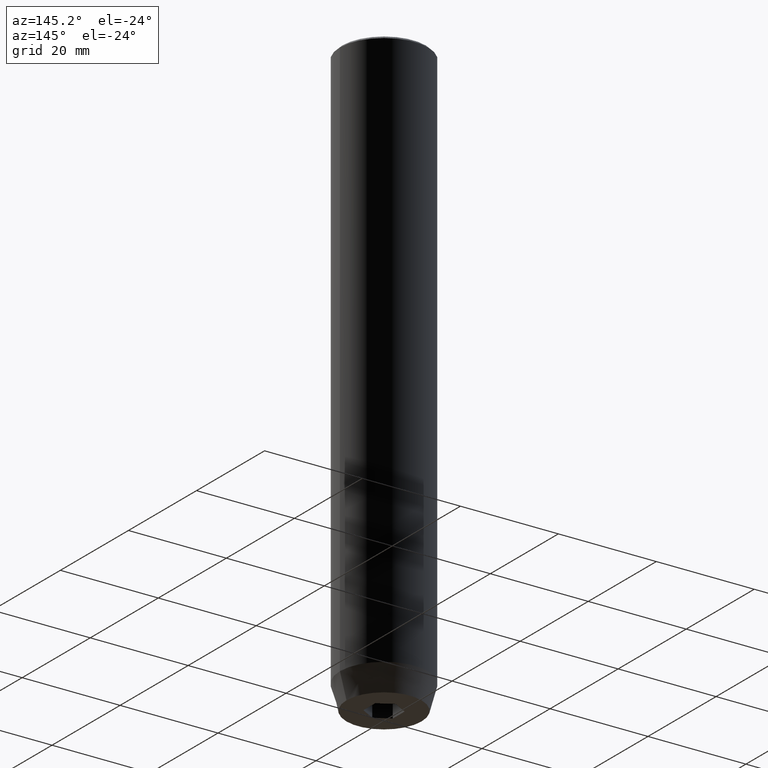
[diagram: clean part render]
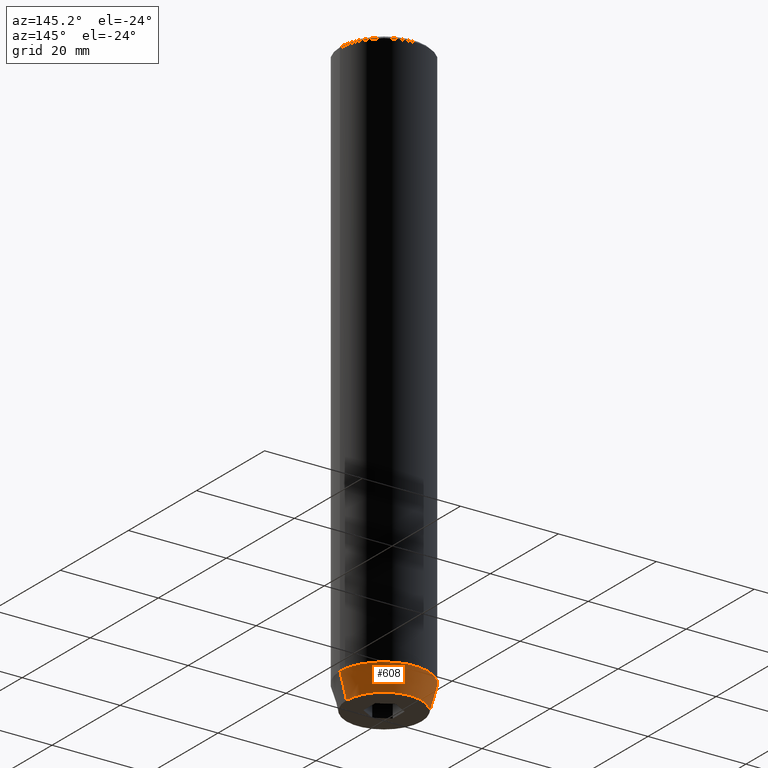
[diagram: same view with one face highlighted and labeled with its STEP entity id]
A machine part, auxiliary view. The second image highlights one B-rep face of the part: STEP entity #608.
In plain terms, the highlighted conical surface has half-angle 15 deg.
Its self-contained STEP definition (entity closure, byte-faithful):
#4 = CIRCLE ( 'NONE', #541, 9.000000000000000000 ) ;
#10 = CARTESIAN_POINT ( 'NONE',  ( 9.000000000000000000, 0.000000000000000000, -114.9999999999999858 ) ) ;
#12 = CARTESIAN_POINT ( 'NONE',  ( -9.000000000000000000, 1.102182119232617714E-15, -114.9999999999999858 ) ) ;
#60 = LINE ( 'NONE', #12, #406 ) ;
#93 = VERTEX_POINT ( 'NONE', #605 ) ;
#102 = VERTEX_POINT ( 'NONE', #158 ) ;
#106 = DIRECTION ( 'NONE',  ( -0.2588190451025214611, 3.169619151431774186E-17, 0.9659258262890679791 ) ) ;
#111 = DIRECTION ( 'NONE',  ( -0.000000000000000000, -0.000000000000000000, 1.000000000000000000 ) ) ;
#139 = CARTESIAN_POINT ( 'NONE',  ( 0.000000000000000000, 0.000000000000000000, -120.0000000000000000 ) ) ;
#158 = CARTESIAN_POINT ( 'NONE',  ( 9.000000000000000000, 0.000000000000000000, -114.9999999999999858 ) ) ;
#180 = CARTESIAN_POINT ( 'NONE',  ( 0.000000000000000000, 0.000000000000000000, -114.9999999999999858 ) ) ;
#211 = ORIENTED_EDGE ( 'NONE', *, *, #576, .T. ) ;
#213 = VERTEX_POINT ( 'NONE', #424 ) ;
#250 = EDGE_CURVE ( 'NONE', #102, #630, #4, .T. ) ;
#273 = CIRCLE ( 'NONE', #305, 7.660254037844380193 ) ;
#294 = CONICAL_SURFACE ( 'NONE', #351, 9.000000000000000000, 0.2617993877991502405 ) ;
#303 = CARTESIAN_POINT ( 'NONE',  ( 0.000000000000000000, 0.000000000000000000, -114.9999999999999858 ) ) ;
#305 = AXIS2_PLACEMENT_3D ( 'NONE', #139, #493, #444 ) ;
#312 = ORIENTED_EDGE ( 'NONE', *, *, #348, .T. ) ;
#348 = EDGE_CURVE ( 'NONE', #213, #93, #273, .T. ) ;
#351 = AXIS2_PLACEMENT_3D ( 'NONE', #303, #111, #501 ) ;
#406 = VECTOR ( 'NONE', #106, 1000.000000000000114 ) ;
#417 = LINE ( 'NONE', #10, #623 ) ;
#424 = CARTESIAN_POINT ( 'NONE',  ( 7.660254037844380193, 0.000000000000000000, -120.0000000000000000 ) ) ;
#444 = DIRECTION ( 'NONE',  ( 1.000000000000000000, 0.000000000000000000, 0.000000000000000000 ) ) ;
#465 = DIRECTION ( 'NONE',  ( 0.2588190451025214611, 0.000000000000000000, 0.9659258262890679791 ) ) ;
#468 = EDGE_CURVE ( 'NONE', #213, #102, #417, .T. ) ;
#489 = DIRECTION ( 'NONE',  ( 1.000000000000000000, 0.000000000000000000, 0.000000000000000000 ) ) ;
#493 = DIRECTION ( 'NONE',  ( -0.000000000000000000, -0.000000000000000000, 1.000000000000000000 ) ) ;
#501 = DIRECTION ( 'NONE',  ( 1.000000000000000000, 0.000000000000000000, 0.000000000000000000 ) ) ;
#514 = EDGE_LOOP ( 'NONE', ( #312, #211, #574, #564 ) ) ;
#541 = AXIS2_PLACEMENT_3D ( 'NONE', #180, #575, #489 ) ;
#554 = FACE_OUTER_BOUND ( 'NONE', #514, .T. ) ;
#564 = ORIENTED_EDGE ( 'NONE', *, *, #468, .F. ) ;
#574 = ORIENTED_EDGE ( 'NONE', *, *, #250, .F. ) ;
#575 = DIRECTION ( 'NONE',  ( -0.000000000000000000, -0.000000000000000000, 1.000000000000000000 ) ) ;
#576 = EDGE_CURVE ( 'NONE', #93, #630, #60, .T. ) ;
#605 = CARTESIAN_POINT ( 'NONE',  ( -7.660254037844380193, 1.020146339021394272E-15, -120.0000000000000000 ) ) ;
#608 = ADVANCED_FACE ( 'NONE', ( #554 ), #294, .T. ) ;
#623 = VECTOR ( 'NONE', #465, 1000.000000000000114 ) ;
#625 = CARTESIAN_POINT ( 'NONE',  ( -9.000000000000000000, 1.102182119232617714E-15, -114.9999999999999858 ) ) ;
#630 = VERTEX_POINT ( 'NONE', #625 ) ;